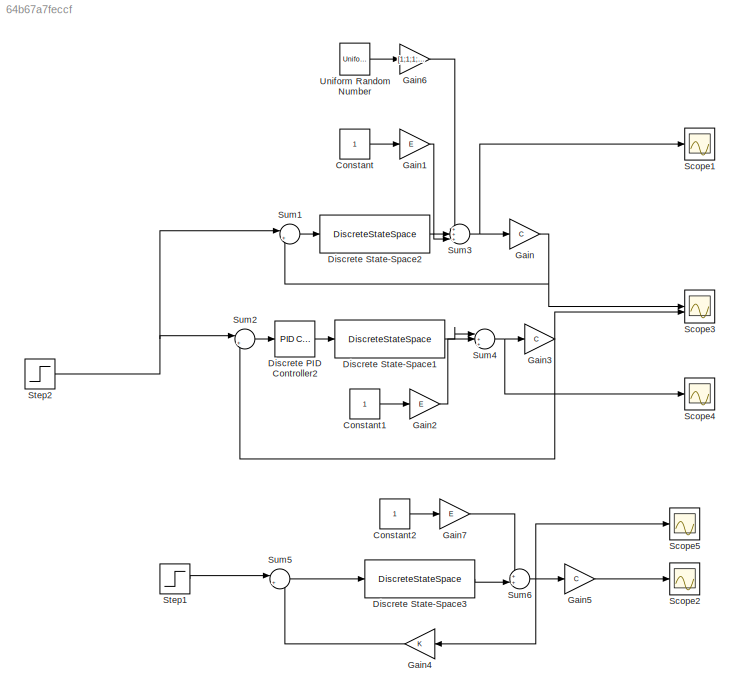
MODEL slx_64b67a7feccf
KIND model
CONFIG AbsTol = auto
CONFIG EnableMultiTasking = off
CONFIG FixedStep = auto
CONFIG MaxStep = auto
CONFIG MinStep = auto
CONFIG RelTol = 1e-3
CONFIG SampleTimeConstraint = Unconstrained
CONFIG SolverName = VariableStepAuto
CONFIG StartTime = 0.0
CONFIG StopTime = 30
BLOCK [Constant] Constant
  SampleTime = Ts
BLOCK [Constant] Constant1
  SampleTime = Ts
BLOCK [Constant] Constant2
  SampleTime = Ts
BLOCK [Reference] Discrete PID Controller2  REF=slpidlib/PID Controller
  LibrarySourceBlock = simulink/Discrete/Discrete PID Controller
  SourceBlock = slpidlib/PID Controller
  SourceType = PID 1dof
BLOCK [DiscreteStateSpace] Discrete State-Space1
  A = A
  B = B
  C = eye(4)
  D = zeros(4,1)
  InitialCondition = x0
  SampleTime = Ts
BLOCK [DiscreteStateSpace] Discrete State-Space2
  A = A
  B = B
  C = eye(4)
  D = zeros(4,1)
  InitialCondition = x0
  SampleTime = Ts
BLOCK [DiscreteStateSpace] Discrete State-Space3
  A = A
  B = B
  C = eye(4)
  D = zeros(4,1)
  InitialCondition = x0
  SampleTime = Ts
BLOCK [Gain] Gain
  Gain = C
  Multiplication = Matrix(K*u)
BLOCK [Gain] Gain1
  Gain = E
  Multiplication = Matrix(K*u)
BLOCK [Gain] Gain2
  Gain = E
  Multiplication = Matrix(K*u)
BLOCK [Gain] Gain3
  Gain = C
  Multiplication = Matrix(K*u)
BLOCK [Gain] Gain4
  Gain = K
  Multiplication = Matrix(K*u)
BLOCK [Gain] Gain5
  Gain = C
  Multiplication = Matrix(K*u)
BLOCK [Gain] Gain6
  Commented = on
  Gain = [1;1;1;1]
  Multiplication = Matrix(K*u)
BLOCK [Gain] Gain7
  Gain = E
  Multiplication = Matrix(K*u)
BLOCK [Scope] Scope1
  Floating = off
  NumInputPorts = 1
  ScopeSpecificationString = Simulink.scopes.TimeScopeBlockCfg('CurrentConfiguration', extmgr.ConfigurationSet(extmgr.Configuration('Core','General UI',true),extmgr.Configuration('Core','Source UI',true),extmgr.Configuration('Sources','WiredSimulink',true,'DataLoggingVariableName','ScopeData1'),extmgr.Configuration('Visuals','Time Domain',true,'SerializedDisplays',{struct('MinYLimReal','-105.926','MaxYLimReal','397.44439','YL...<+1465ch>
BLOCK [Scope] Scope2
  Floating = off
  NumInputPorts = 1
  ScopeSpecificationString = Simulink.scopes.TimeScopeBlockCfg('CurrentConfiguration', extmgr.ConfigurationSet(extmgr.Configuration('Core','General UI',true,'FigureColor',[1 1 1]),extmgr.Configuration('Core','Source UI',true),extmgr.Configuration('Sources','WiredSimulink',true,'DataLoggingVariableName','ScopeData1'),extmgr.Configuration('Visuals','Time Domain',true,'SerializedDisplays',{struct('MinYLimReal','-1.01379','MaxYLi...<+1554ch>
BLOCK [Scope] Scope3
  Floating = off
  NumInputPorts = 2
  ScopeSpecificationString = Simulink.scopes.TimeScopeBlockCfg('CurrentConfiguration', extmgr.ConfigurationSet(extmgr.Configuration('Core','General UI',true,'FigureColor',[1 1 1]),extmgr.Configuration('Core','Source UI',true),extmgr.Configuration('Sources','WiredSimulink',true,'DataLoggingVariableName','ScopeData3'),extmgr.Configuration('Visuals','Time Domain',true,'SerializedDisplays',{struct('MinYLimReal','-0.88579','MaxYLi...<+1722ch>
BLOCK [Scope] Scope4
  Floating = off
  NumInputPorts = 1
  ScopeSpecificationString = Simulink.scopes.TimeScopeBlockCfg('CurrentConfiguration', extmgr.ConfigurationSet(extmgr.Configuration('Core','General UI',true),extmgr.Configuration('Core','Source UI',true),extmgr.Configuration('Sources','WiredSimulink',true,'DataLoggingVariableName','ScopeData4'),extmgr.Configuration('Visuals','Time Domain',true,'SerializedDisplays',{struct('MinYLimReal','-150.45736','MaxYLimReal','825.30316','...<+1477ch>
BLOCK [Scope] Scope5
  Floating = off
  NumInputPorts = 1
  ScopeSpecificationString = Simulink.scopes.TimeScopeBlockCfg('CurrentConfiguration', extmgr.ConfigurationSet(extmgr.Configuration('Core','General UI',true),extmgr.Configuration('Core','Source UI',true),extmgr.Configuration('Sources','WiredSimulink',true,'DataLoggingVariableName','ScopeData2'),extmgr.Configuration('Visuals','Time Domain',true,'SerializedDisplays',{struct('MinYLimReal','-64.33457','MaxYLimReal','68.46262','YL...<+1459ch>
BLOCK [Step] Step1
  SampleTime = Ts
BLOCK [Step] Step2
  SampleTime = Ts
BLOCK [Sum] Sum1
  Inputs = |+-
BLOCK [Sum] Sum2
  Inputs = |+-
BLOCK [Sum] Sum3
  Inputs = +++|
BLOCK [Sum] Sum4
  Inputs = |+++
BLOCK [Sum] Sum5
  Inputs = |+-
BLOCK [Sum] Sum6
  Inputs = ++|
BLOCK [UniformRandomNumber] Uniform Random Number
  Commented = on
  Maximum = 0.1
  Minimum = -0.1
  SampleTime = Ts
LINE Constant1:1 -> Gain2:1
LINE Constant2:1 -> Gain7:1
LINE Constant:1 -> Gain1:1
LINE Discrete PID Controller2:1 -> Discrete State-Space1:1
LINE Discrete State-Space1:1 -> Sum4:1
LINE Discrete State-Space2:1 -> Sum3:3
LINE Discrete State-Space3:1 -> Sum6:2
LINE Gain1:1 -> Sum3:2
LINE Gain2:1 -> Sum4:2
NET Gain3:1 -> Scope3:2, Sum2:2
LINE Gain4:1 -> Sum5:2
LINE Gain5:1 -> Scope2:1
LINE Gain6:1 -> Sum3:1
LINE Gain7:1 -> Sum6:1
NET Gain:1 -> Scope3:1, Sum1:2
LINE Step1:1 -> Sum5:1
NET Step2:1 -> Sum1:1, Sum2:1
LINE Sum1:1 -> Discrete State-Space2:1
LINE Sum2:1 -> Discrete PID Controller2:1
NET Sum3:1 -> Gain:1, Scope1:1
NET Sum4:1 -> Gain3:1, Scope4:1
LINE Sum5:1 -> Discrete State-Space3:1
NET Sum6:1 -> Gain4:1, Gain5:1, Scope5:1
LINE Uniform Random Number:1 -> Gain6:1
note: NET lines group one-source signal fan-out (src -> all destinations, sorted); 1:1 wires keep LINE
